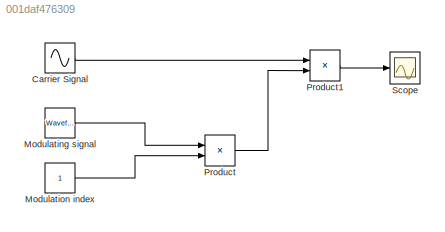
MODEL slx_001daf476309
KIND model
CONFIG AbsTol = auto
CONFIG EnableMultiTasking = off
CONFIG FixedStep = auto
CONFIG MaxStep = auto
CONFIG MinStep = auto
CONFIG RelTol = 1e-3
CONFIG SampleTimeConstraint = Unconstrained
CONFIG SolverName = VariableStepAuto
CONFIG StartTime = 0.0
CONFIG StopTime = 10
BLOCK [Sin] Carrier Signal
  Amplitude = 5
  Frequency = 50
  SampleTime = 0
BLOCK [Reference] Modulating signal  REF=simulink/Sources/Waveform
Generator
  SourceBlock = simulink/Sources/Waveform\nGenerator
  SourceType = WaveformGenerator
BLOCK [Constant] Modulation index
BLOCK [Product] Product
BLOCK [Product] Product1
BLOCK [Scope] Scope
  Floating = off
  NumInputPorts = 1
  ScopeSpecificationString = Simulink.scopes.TimeScopeBlockCfg('CurrentConfiguration', extmgr.ConfigurationSet(extmgr.Configuration('Core','General UI',true),extmgr.Configuration('Core','Source UI',true),extmgr.Configuration('Sources','WiredSimulink',true),extmgr.Configuration('Visuals','Time Domain',true,'SerializedDisplays',{struct('MinYLimReal','-31.23746','MaxYLimReal','31.13967','YLabelReal','','MinYLimMag','0.00000','Ma...<+1388ch>
LINE Carrier Signal:1 -> Product1:1
LINE Modulating signal:1 -> Product:1
LINE Modulation index:1 -> Product:2
LINE Product1:1 -> Scope:1
LINE Product:1 -> Product1:2
